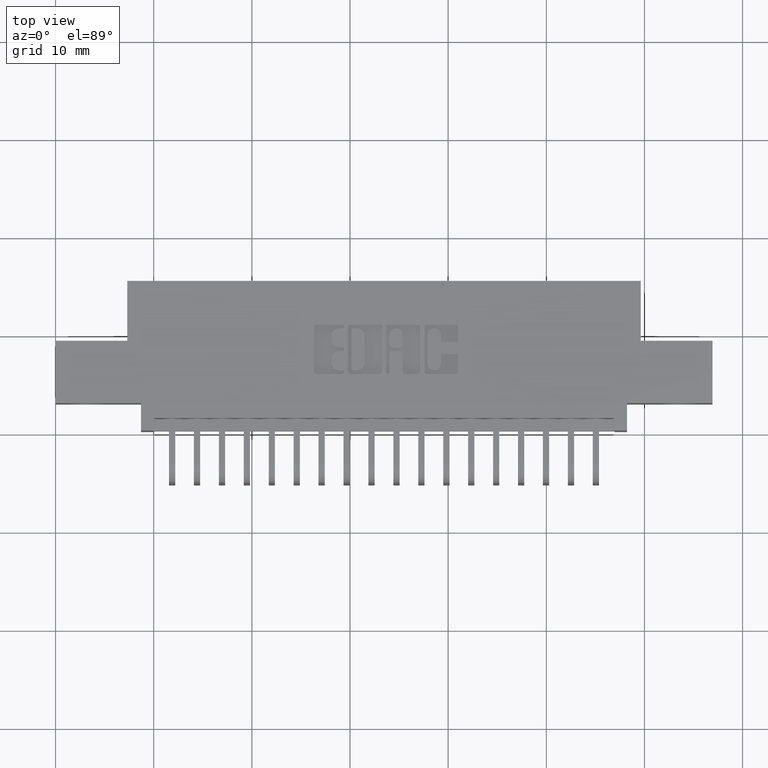
[diagram: clean part render]
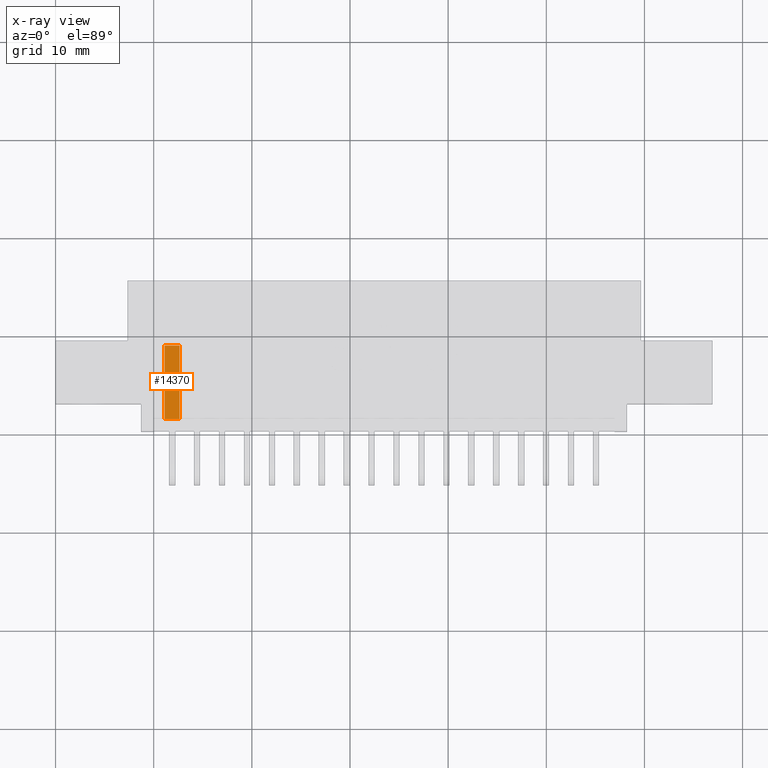
[diagram: x-ray — body ghosted, one internal face saturated and labeled with its STEP entity id]
A machine part, top view, then the same camera in x-ray: the body is ghosted and one INTERNAL B-rep face — a face not visible from any outside direction — is saturated and labeled: STEP entity #14370.
In plain terms, the highlighted planar face has unit normal (0, -0, 1).
Its self-contained STEP definition (entity closure, byte-faithful):
#184 = DIRECTION ( 'NONE',  ( 0.0000000000000000000, -1.979599995408886100E-016, 1.000000000000000000 ) ) ;
#1710 = CARTESIAN_POINT ( 'NONE',  ( 0.4974999999999998900, 0.05000000000000001000, -0.2725000000000000800 ) ) ;
#1782 = VECTOR ( 'NONE', #4855, 39.37007874015748100 ) ;
#1796 = CARTESIAN_POINT ( 'NONE',  ( 0.4374999999999998900, 0.3450000000000002000, -0.2725000000000000200 ) ) ;
#1841 = FACE_OUTER_BOUND ( 'NONE', #10649, .T. ) ;
#2144 = DIRECTION ( 'NONE',  ( 0.0000000000000000000, -1.000000000000000000, -1.979599995408885400E-016 ) ) ;
#3115 = VERTEX_POINT ( 'NONE', #18122 ) ;
#3155 = VECTOR ( 'NONE', #18624, 39.37007874015748100 ) ;
#3203 = AXIS2_PLACEMENT_3D ( 'NONE', #1796, #184, #11455 ) ;
#3210 = CARTESIAN_POINT ( 'NONE',  ( 0.4374999999999998900, 0.3450000000000002000, -0.2725000000000000200 ) ) ;
#3651 = ORIENTED_EDGE ( 'NONE', *, *, #5049, .T. ) ;
#3936 = EDGE_CURVE ( 'NONE', #19803, #3115, #19215, .T. ) ;
#4855 = DIRECTION ( 'NONE',  ( 1.000000000000000000, -0.0000000000000000000, -0.0000000000000000000 ) ) ;
#5049 = EDGE_CURVE ( 'NONE', #14963, #3115, #16342, .T. ) ;
#6377 = EDGE_CURVE ( 'NONE', #19803, #19331, #9355, .T. ) ;
#7000 = CARTESIAN_POINT ( 'NONE',  ( 0.4974999999999998900, 0.3450000000000002000, -0.2725000000000000200 ) ) ;
#7885 = CARTESIAN_POINT ( 'NONE',  ( 0.4374999999999998900, 0.3450000000000002000, -0.2725000000000000200 ) ) ;
#7964 = VECTOR ( 'NONE', #2144, 39.37007874015748100 ) ;
#9355 = LINE ( 'NONE', #14194, #1782 ) ;
#9822 = PLANE ( 'NONE',  #3203 ) ;
#10649 = EDGE_LOOP ( 'NONE', ( #3651, #16631, #18065, #14958 ) ) ;
#10844 = DIRECTION ( 'NONE',  ( -1.000000000000000000, 0.0000000000000000000, 0.0000000000000000000 ) ) ;
#11455 = DIRECTION ( 'NONE',  ( 0.0000000000000000000, -1.000000000000000000, -1.979599995408886100E-016 ) ) ;
#13093 = CARTESIAN_POINT ( 'NONE',  ( 0.4974999999999998900, 0.3450000000000002000, -0.2725000000000000200 ) ) ;
#13846 = CARTESIAN_POINT ( 'NONE',  ( 2.242499999999999700, 0.05000000000000000300, -0.2725000000000000800 ) ) ;
#14194 = CARTESIAN_POINT ( 'NONE',  ( 0.4374999999999998900, 0.3450000000000002000, -0.2725000000000000200 ) ) ;
#14370 = ADVANCED_FACE ( 'NONE', ( #1841 ), #9822, .F. ) ;
#14474 = EDGE_CURVE ( 'NONE', #19331, #14963, #16137, .T. ) ;
#14958 = ORIENTED_EDGE ( 'NONE', *, *, #14474, .T. ) ;
#14963 = VERTEX_POINT ( 'NONE', #1710 ) ;
#16137 = LINE ( 'NONE', #7000, #7964 ) ;
#16342 = LINE ( 'NONE', #13846, #16823 ) ;
#16631 = ORIENTED_EDGE ( 'NONE', *, *, #3936, .F. ) ;
#16823 = VECTOR ( 'NONE', #10844, 39.37007874015748100 ) ;
#18065 = ORIENTED_EDGE ( 'NONE', *, *, #6377, .T. ) ;
#18122 = CARTESIAN_POINT ( 'NONE',  ( 0.4374999999999998900, 0.05000000000000001000, -0.2725000000000000800 ) ) ;
#18624 = DIRECTION ( 'NONE',  ( 0.0000000000000000000, -1.000000000000000000, -1.979599995408885400E-016 ) ) ;
#19215 = LINE ( 'NONE', #7885, #3155 ) ;
#19331 = VERTEX_POINT ( 'NONE', #13093 ) ;
#19803 = VERTEX_POINT ( 'NONE', #3210 ) ;